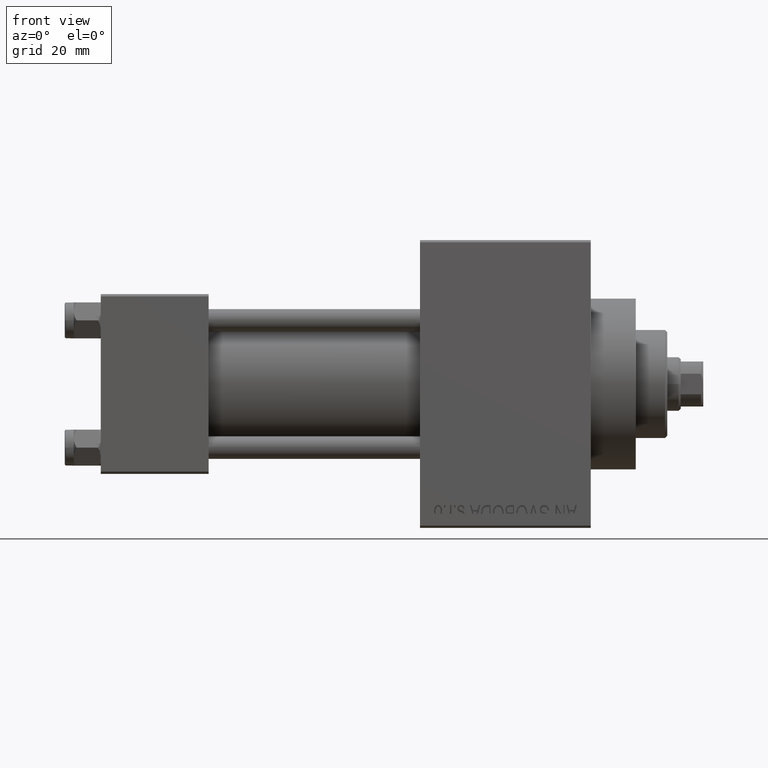
[diagram: clean part render]
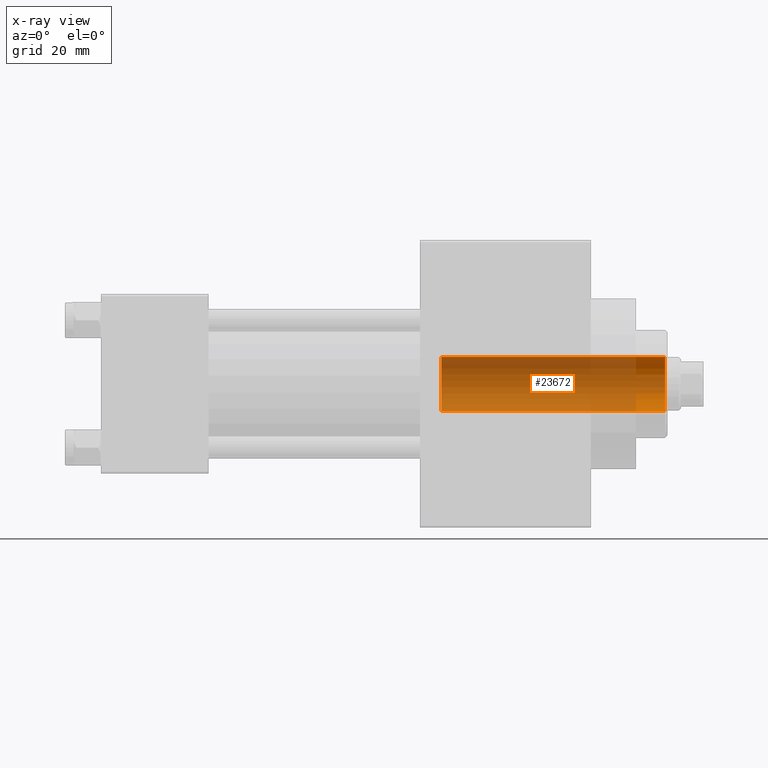
[diagram: x-ray — body ghosted, one internal face saturated and labeled with its STEP entity id]
A machine part, front view, then the same camera in x-ray: the body is ghosted and one INTERNAL B-rep face — a face not visible from any outside direction — is saturated and labeled: STEP entity #23672.
In plain terms, the highlighted cylindrical surface (edge-blend (fillet) strip) has radius 6 mm, axis along (1, -0, -0).
Its self-contained STEP definition (entity closure, byte-faithful):
#3932 = LINE ( 'NONE', #46257, #28116 ) ;
#7899 = ORIENTED_EDGE ( 'NONE', *, *, #47217, .F. ) ;
#9139 = CIRCLE ( 'NONE', #44006, 6.000000000000000888 ) ;
#15254 = VERTEX_POINT ( 'NONE', #35745 ) ;
#15327 = DIRECTION ( 'NONE',  ( 1.000000000000000000, 0.000000000000000000, 0.000000000000000000 ) ) ;
#15468 = DIRECTION ( 'NONE',  ( -0.000000000000000000, -0.000000000000000000, -1.000000000000000000 ) ) ;
#15721 = AXIS2_PLACEMENT_3D ( 'NONE', #38845, #41835, #15327 ) ;
#17299 = CIRCLE ( 'NONE', #15721, 6.000000000000000888 ) ;
#18323 = FACE_OUTER_BOUND ( 'NONE', #20316, .T. ) ;
#20239 = CARTESIAN_POINT ( 'NONE',  ( 6.000000000000000888, 0.000000000000000000, 0.000000000000000000 ) ) ;
#20316 = EDGE_LOOP ( 'NONE', ( #33391, #34069, #38524, #7899 ) ) ;
#22040 = CARTESIAN_POINT ( 'NONE',  ( 0.000000000000000000, 0.000000000000000000, -16.97056274847713553 ) ) ;
#22297 = DIRECTION ( 'NONE',  ( 1.000000000000000000, 0.000000000000000000, 0.000000000000000000 ) ) ;
#23672 = ADVANCED_FACE ( 'NONE', ( #18323 ), #44339, .F. ) ;
#24312 = EDGE_CURVE ( 'NONE', #29867, #15254, #3932, .T. ) ;
#24418 = VERTEX_POINT ( 'NONE', #20239 ) ;
#26257 = DIRECTION ( 'NONE',  ( -0.000000000000000000, -0.000000000000000000, 1.000000000000000000 ) ) ;
#26296 = EDGE_CURVE ( 'NONE', #24418, #29867, #9139, .T. ) ;
#28116 = VECTOR ( 'NONE', #48984, 1000.000000000000000 ) ;
#29867 = VERTEX_POINT ( 'NONE', #31035 ) ;
#30584 = DIRECTION ( 'NONE',  ( 1.000000000000000000, 0.000000000000000000, 0.000000000000000000 ) ) ;
#31035 = CARTESIAN_POINT ( 'NONE',  ( -6.000000000000000888, 7.347880794884120722E-16, 0.000000000000000000 ) ) ;
#32115 = VERTEX_POINT ( 'NONE', #43594 ) ;
#33391 = ORIENTED_EDGE ( 'NONE', *, *, #26296, .T. ) ;
#34069 = ORIENTED_EDGE ( 'NONE', *, *, #24312, .T. ) ;
#34405 = AXIS2_PLACEMENT_3D ( 'NONE', #22040, #48766, #22297 ) ;
#35745 = CARTESIAN_POINT ( 'NONE',  ( -6.000000000000000888, 7.347880794884120722E-16, 49.75999999999999801 ) ) ;
#37639 = LINE ( 'NONE', #48749, #40287 ) ;
#38021 = CARTESIAN_POINT ( 'NONE',  ( 0.000000000000000000, 0.000000000000000000, 0.000000000000000000 ) ) ;
#38524 = ORIENTED_EDGE ( 'NONE', *, *, #46444, .F. ) ;
#38845 = CARTESIAN_POINT ( 'NONE',  ( 0.000000000000000000, 0.000000000000000000, 49.75999999999999801 ) ) ;
#40287 = VECTOR ( 'NONE', #26257, 1000.000000000000000 ) ;
#41835 = DIRECTION ( 'NONE',  ( -0.000000000000000000, -0.000000000000000000, -1.000000000000000000 ) ) ;
#43594 = CARTESIAN_POINT ( 'NONE',  ( 6.000000000000000888, 0.000000000000000000, 49.75999999999999801 ) ) ;
#44006 = AXIS2_PLACEMENT_3D ( 'NONE', #38021, #15468, #30584 ) ;
#44339 = CYLINDRICAL_SURFACE ( 'NONE', #34405, 6.000000000000000888 ) ;
#46257 = CARTESIAN_POINT ( 'NONE',  ( -6.000000000000000888, 7.347880794884120722E-16, -16.97056274847713553 ) ) ;
#46444 = EDGE_CURVE ( 'NONE', #32115, #15254, #17299, .T. ) ;
#47217 = EDGE_CURVE ( 'NONE', #24418, #32115, #37639, .T. ) ;
#48749 = CARTESIAN_POINT ( 'NONE',  ( 6.000000000000000888, 0.000000000000000000, -16.97056274847713553 ) ) ;
#48766 = DIRECTION ( 'NONE',  ( -0.000000000000000000, -0.000000000000000000, 1.000000000000000000 ) ) ;
#48984 = DIRECTION ( 'NONE',  ( -0.000000000000000000, -0.000000000000000000, 1.000000000000000000 ) ) ;